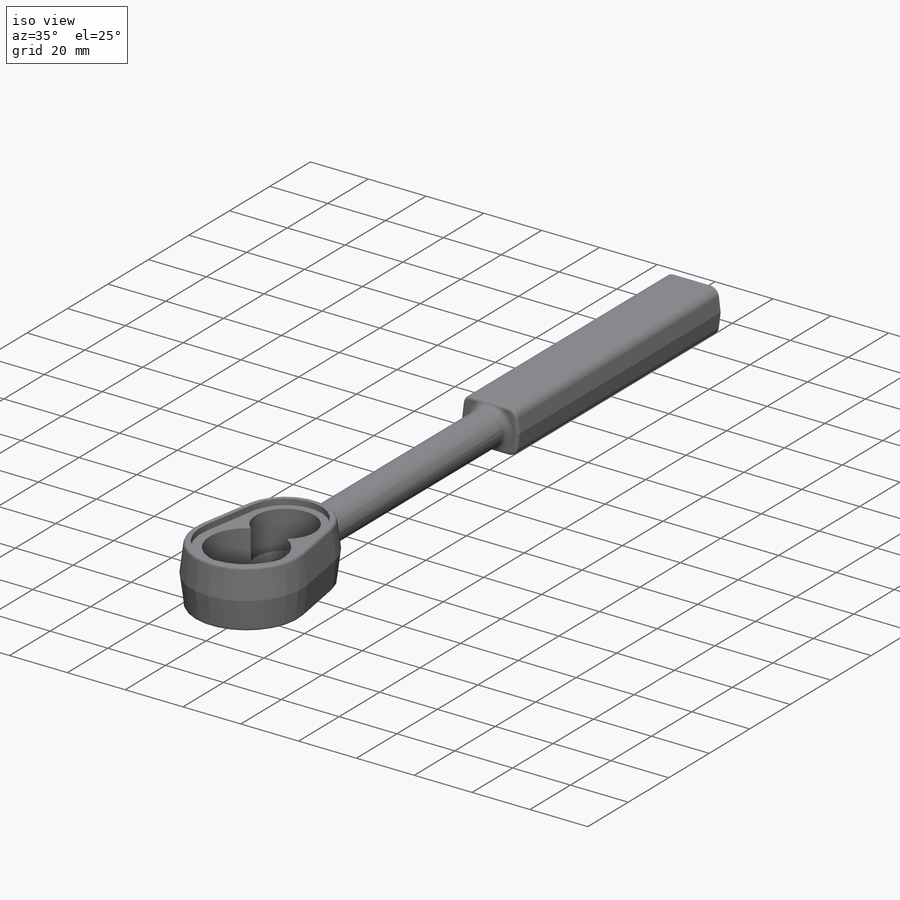
[diagram: iso view]
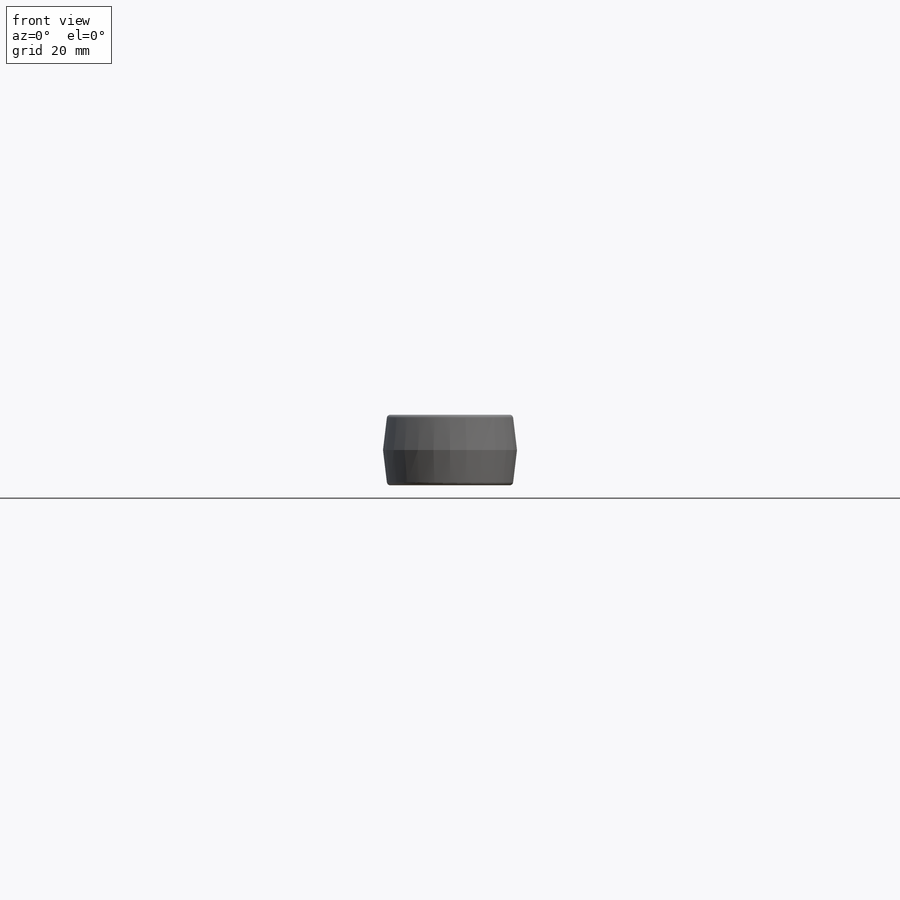
[diagram: front view]
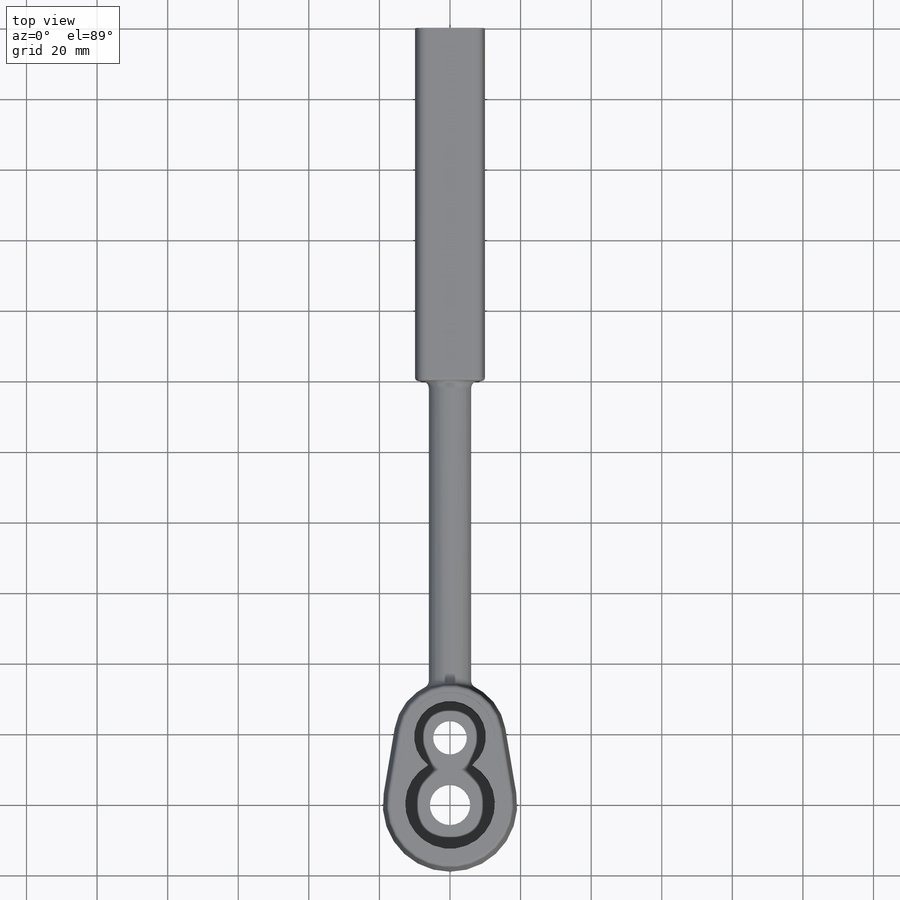
[diagram: top view]
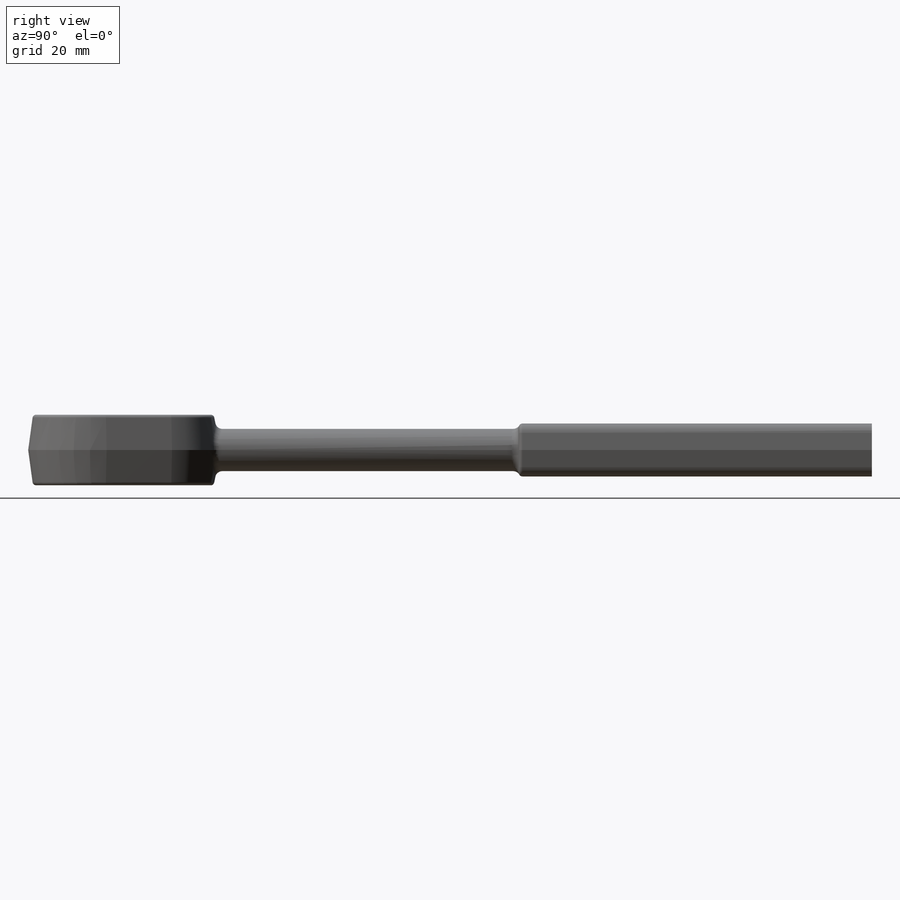
[diagram: right view]
SOLIDWORKS PART (.sldprt)
format: sldprt  version: not decoded by parser v0  size: 332,288 bytes
history: native  units: mm
features: sketch x7, extrude x3, fillet x3, hole x2, material x1, plane x1, cut_extrude x1 (+12 scaffold rows collapsed)
feature tree (30):
  scaffold x12  (default folders/planes/origin — collapsed)
  material  "Material <not specified>"
  sketch  "Sketch1"  dims[D1=15.875mm D2=19.05mm D3=19.05mm]
  extrude  "Head"  Depth=20mm Draft=7deg
  plane  "Trans Plane"  Offset=120mm
  sketch  "Sketch14"  dims[D1=12.0mm]
  extrude  "Transition"  [1 undecoded]
  sketch  "Sketch15"  dims[Draft=7.0deg D2=15.0mm D3=18.0mm]
  extrude  "Handle"  Depth=100mm
  sketch  "Sketch16"  dims[D1=2.0mm]
  cut_extrude  "Recess"  Depth=2mm
  sketch  "Sketch17"  dims[c1.D1=10.16mm c1.D2=12.7mm c2.D1=13.0mm]
  sketch  "Sketch18"  dims[D1=9.525mm]
  hole  "Wheel Hole"  [1 undecoded]
  sketch  "Sketch19"  dims[D1=11.43mm]
  hole  "Ratchet Hole"  [1 undecoded]
  fillet  "Handle Fillets"  Radius=3mm
  fillet  "H End Fillets"  Radius=1mm
  fillet  "T-H Fillets"  Radius=2mm
decode coverage: 13 of 16 modeling features carry decoded parameters
note: 3 parameter values undecoded
summary: no parameter record found for 3 features
note: suppression state not decoded; provenance and decode notes live in map.json
